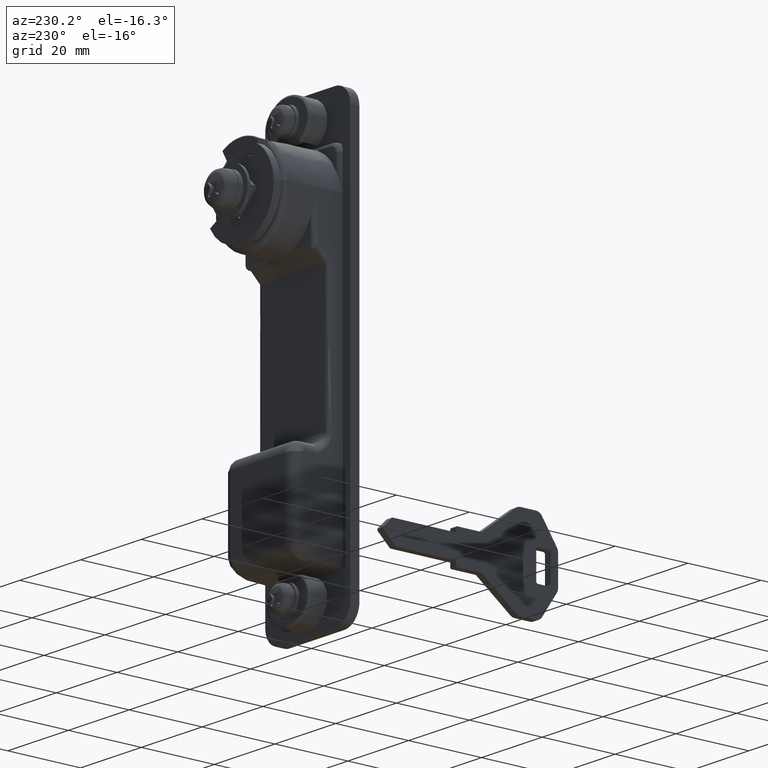
[diagram: clean part render]
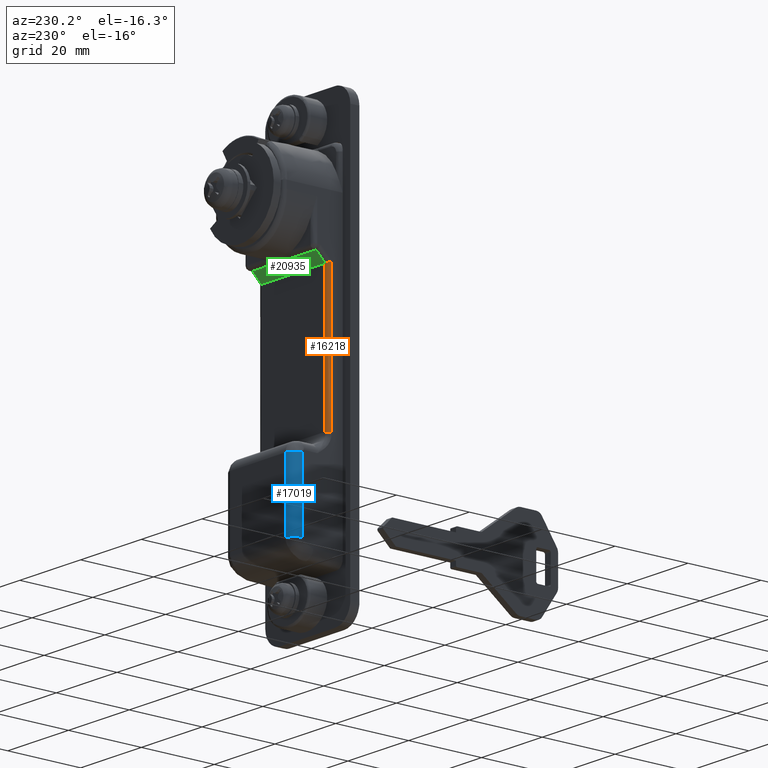
[diagram: same view with three faces highlighted in distinct colors, each labeled with its STEP entity id]
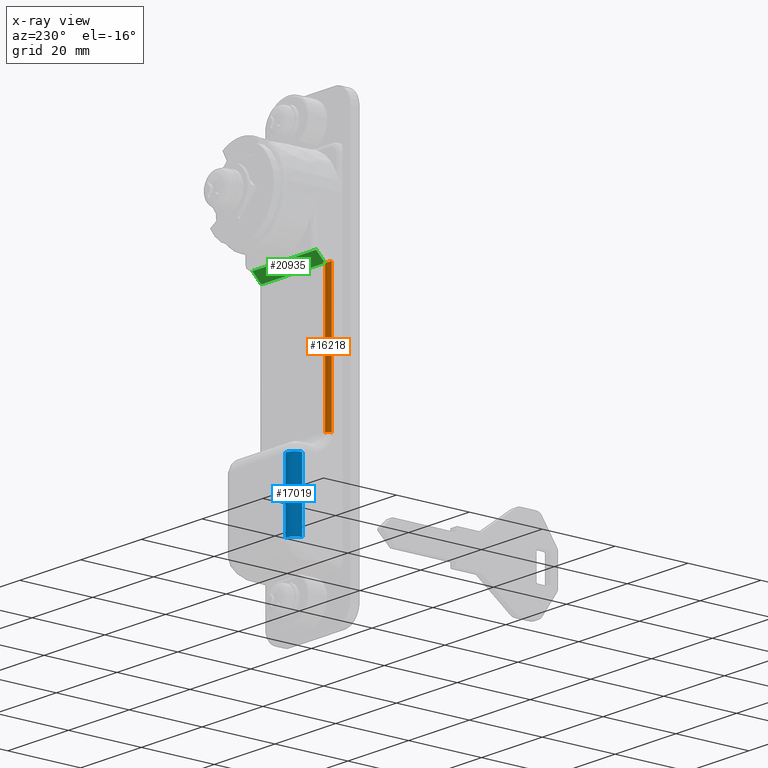
[diagram: x-ray of the same camera — body ghosted, the three highlighted faces saturated]
A machine part, auxiliary view with three faces highlighted in distinct colors.
The next image is the same camera in x-ray (body ghosted, the three faces saturated) — at least one of them is partly hidden behind the body in this view.
Their STEP definitions:

[orange] entity #16218 — the highlighted face is a freeform B-spline surface patch.
#16079=CARTESIAN_POINT('',(4.0,11.500000000000000,-52.208497377870998));
#16080=VERTEX_POINT('',#16079);
#16081=CARTESIAN_POINT('',(5.0,10.500000000000000,-52.208497377870998));
#16082=VERTEX_POINT('',#16081);
#16083=CARTESIAN_POINT('',(4.0,11.500000000000000,-52.208497377870998));
#16084=CARTESIAN_POINT('',(5.000000000000001,11.500000000000000,-52.208497377870991));
#16085=CARTESIAN_POINT('',(5.0,10.500000000000000,-52.208497377870998));
#16093=(BOUNDED_CURVE()B_SPLINE_CURVE(2,(#16083,#16084,#16085),.UNSPECIFIED.,.F.,.U.)CURVE()GEOMETRIC_REPRESENTATION_ITEM()QUASI_UNIFORM_CURVE()RATIONAL_B_SPLINE_CURVE((1.0,0.707106781186548,1.0))REPRESENTATION_ITEM(''));
#16094=EDGE_CURVE('',#16080,#16082,#16093,.T.);
#16172=CARTESIAN_POINT('',(3.991273464501627,11.499961923064170,-53.150303601377097));
#16173=CARTESIAN_POINT('',(3.991273464501627,11.499961923064170,-13.570897058533330));
#16174=CARTESIAN_POINT('',(5.063601342011753,11.509319986679548,-53.150303601377111));
#16175=CARTESIAN_POINT('',(5.063601342011753,11.509319986679548,-13.570897058533326));
#16176=CARTESIAN_POINT('',(4.998134798421866,10.438951460465150,-53.150303601377097));
#16177=CARTESIAN_POINT('',(4.998134798421866,10.438951460465150,-13.570897058533330));
#16185=(BOUNDED_SURFACE()B_SPLINE_SURFACE(1,2,((#16172,#16174,#16176),(#16173,#16175,#16177)),.UNSPECIFIED.,.F.,.F.,.U.)B_SPLINE_SURFACE_WITH_KNOTS((2,2),(3,3),(0.0,39.579406542843778),(0.0,1.0),.UNSPECIFIED.)GEOMETRIC_REPRESENTATION_ITEM()RATIONAL_B_SPLINE_SURFACE(((1.0,0.681998360062499,1.0),(1.0,0.681998360062499,1.0)))REPRESENTATION_ITEM('')SURFACE());
#16186=CARTESIAN_POINT('',(4.0,11.500000000000000,-14.536248437627080));
#16187=VERTEX_POINT('',#16186);
#16188=CARTESIAN_POINT('',(5.0,10.500000000000000,-14.950462000000099));
#16189=VERTEX_POINT('',#16188);
#16190=CARTESIAN_POINT('',(3.999999999999993,11.500000000000000,-14.536248437627100));
#16191=CARTESIAN_POINT('',(4.414213638594921,11.500000000000000,-14.707821344453023));
#16192=CARTESIAN_POINT('',(4.707106873194422,11.207106689178660,-14.829141694551460));
#16193=CARTESIAN_POINT('',(5.000000107793927,10.914213378357324,-14.950462044649898));
#16194=CARTESIAN_POINT('',(5.0,10.500000000000000,-14.950462000000099));
#16202=(BOUNDED_CURVE()B_SPLINE_CURVE(2,(#16190,#16191,#16192,#16193,#16194),.UNSPECIFIED.,.F.,.U.)B_SPLINE_CURVE_WITH_KNOTS((3,2,3),(0.0,0.500000000000000,1.0),.UNSPECIFIED.)CURVE()GEOMETRIC_REPRESENTATION_ITEM()RATIONAL_B_SPLINE_CURVE((1.0,0.923879507614147,1.0,0.923879507614147,1.0))REPRESENTATION_ITEM(''));
#16203=EDGE_CURVE('',#16187,#16189,#16202,.T.);
#16204=ORIENTED_EDGE('',*,*,#16203,.T.);
#16205=CARTESIAN_POINT('',(5.0,10.500000000000000,-52.208497377870998));
#16206=CARTESIAN_POINT('',(5.0,10.500000000000000,-14.950462000000099));
#16207=QUASI_UNIFORM_CURVE('',1,(#16205,#16206),.UNSPECIFIED.,.F.,.U.);
#16208=EDGE_CURVE('',#16082,#16189,#16207,.T.);
#16209=ORIENTED_EDGE('',*,*,#16208,.F.);
#16210=ORIENTED_EDGE('',*,*,#16094,.F.);
#16211=CARTESIAN_POINT('',(4.0,11.500000000000000,-14.536248437627080));
#16212=CARTESIAN_POINT('',(4.0,11.500000000000000,-52.208497377870998));
#16213=QUASI_UNIFORM_CURVE('',1,(#16211,#16212),.UNSPECIFIED.,.F.,.U.);
#16214=EDGE_CURVE('',#16187,#16080,#16213,.T.);
#16215=ORIENTED_EDGE('',*,*,#16214,.F.);
#16216=EDGE_LOOP('',(#16204,#16209,#16210,#16215));
#16217=FACE_OUTER_BOUND('',#16216,.T.);
#16218=ADVANCED_FACE('',(#16217),#16185,.T.);

[blue] entity #17019 — the highlighted face is a freeform B-spline surface patch.
#16912=CARTESIAN_POINT('',(14.600000000000000,9.0,-58.0));
#16913=VERTEX_POINT('',#16912);
#16914=CARTESIAN_POINT('',(12.100000000000000,11.500000000000000,-58.0));
#16915=VERTEX_POINT('',#16914);
#16916=CARTESIAN_POINT('',(14.600000000000000,9.0,-58.0));
#16917=CARTESIAN_POINT('',(14.600000000000009,11.500000000000000,-58.0));
#16918=CARTESIAN_POINT('',(12.100000000000000,11.500000000000000,-58.0));
#16926=(BOUNDED_CURVE()B_SPLINE_CURVE(2,(#16916,#16917,#16918),.UNSPECIFIED.,.F.,.U.)CURVE()GEOMETRIC_REPRESENTATION_ITEM()QUASI_UNIFORM_CURVE()RATIONAL_B_SPLINE_CURVE((1.0,0.707106781186548,1.0))REPRESENTATION_ITEM(''));
#16927=EDGE_CURVE('',#16913,#16915,#16926,.T.);
#16975=CARTESIAN_POINT('',(12.034557629230310,11.499143312438891,-77.226013150000114));
#16976=CARTESIAN_POINT('',(12.034557629230310,11.499143312438891,-57.519349671249991));
#16977=CARTESIAN_POINT('',(14.761893971485295,11.570561127989979,-77.226013150000099));
#16978=CARTESIAN_POINT('',(14.761893971485295,11.570561127989979,-57.519349671249991));
#16979=CARTESIAN_POINT('',(14.595336996054669,8.847378651162860,-77.226013150000114));
#16980=CARTESIAN_POINT('',(14.595336996054669,8.847378651162860,-57.519349671249991));
#16988=(BOUNDED_SURFACE()B_SPLINE_SURFACE(1,2,((#16975,#16977,#16979),(#16976,#16978,#16980)),.UNSPECIFIED.,.F.,.F.,.U.)B_SPLINE_SURFACE_WITH_KNOTS((2,2),(3,3),(0.0,19.706663478750130),(0.0,4.400105308918334),.UNSPECIFIED.)GEOMETRIC_REPRESENTATION_ITEM()RATIONAL_B_SPLINE_SURFACE(((1.0,0.675590207615660,1.0),(1.0,0.675590207615660,1.0)))REPRESENTATION_ITEM('')SURFACE());
#16989=CARTESIAN_POINT('',(14.600000000000000,9.0,-76.757086000000101));
#16990=VERTEX_POINT('',#16989);
#16991=CARTESIAN_POINT('',(12.100000000000000,11.500000000000000,-76.757086000000101));
#16992=VERTEX_POINT('',#16991);
#16993=CARTESIAN_POINT('',(14.600000000000000,9.0,-76.757086000000101));
#16994=CARTESIAN_POINT('',(14.600000000000009,11.500000000000000,-76.757086000000101));
#16995=CARTESIAN_POINT('',(12.100000000000000,11.500000000000000,-76.757086000000101));
#17003=(BOUNDED_CURVE()B_SPLINE_CURVE(2,(#16993,#16994,#16995),.UNSPECIFIED.,.F.,.U.)CURVE()GEOMETRIC_REPRESENTATION_ITEM()QUASI_UNIFORM_CURVE()RATIONAL_B_SPLINE_CURVE((1.0,0.707106781186548,1.0))REPRESENTATION_ITEM(''));
#17004=EDGE_CURVE('',#16990,#16992,#17003,.T.);
#17005=ORIENTED_EDGE('',*,*,#17004,.T.);
#17006=CARTESIAN_POINT('',(12.100000000000000,11.500000000000000,-58.0));
#17007=CARTESIAN_POINT('',(12.100000000000000,11.500000000000000,-76.757086000000101));
#17008=QUASI_UNIFORM_CURVE('',1,(#17006,#17007),.UNSPECIFIED.,.F.,.U.);
#17009=EDGE_CURVE('',#16915,#16992,#17008,.T.);
#17010=ORIENTED_EDGE('',*,*,#17009,.F.);
#17011=ORIENTED_EDGE('',*,*,#16927,.F.);
#17012=CARTESIAN_POINT('',(14.600000000000000,9.0,-76.757086000000101));
#17013=CARTESIAN_POINT('',(14.600000000000000,9.0,-58.0));
#17014=QUASI_UNIFORM_CURVE('',1,(#17012,#17013),.UNSPECIFIED.,.F.,.U.);
#17015=EDGE_CURVE('',#16990,#16913,#17014,.T.);
#17016=ORIENTED_EDGE('',*,*,#17015,.F.);
#17017=EDGE_LOOP('',(#17005,#17010,#17011,#17016));
#17018=FACE_OUTER_BOUND('',#17017,.T.);
#17019=ADVANCED_FACE('',(#17018),#16988,.T.);

[green] entity #20935 — the highlighted face is a freeform B-spline surface patch.
#15748=CARTESIAN_POINT('',(5.0,-10.500000000000000,-14.950462000000099));
#15749=VERTEX_POINT('',#15748);
#15793=CARTESIAN_POINT('',(7.450462000000099,-10.500000000000000,-12.500000000000000));
#15794=VERTEX_POINT('',#15793);
#15816=CARTESIAN_POINT('',(7.450462000000099,-10.500000000000000,-12.500000000000000));
#15817=CARTESIAN_POINT('',(5.0,-10.500000000000000,-14.950462000000099));
#15818=QUASI_UNIFORM_CURVE('',1,(#15816,#15817),.UNSPECIFIED.,.F.,.U.);
#15819=EDGE_CURVE('',#15794,#15749,#15818,.T.);
#16188=CARTESIAN_POINT('',(5.0,10.500000000000000,-14.950462000000099));
#16189=VERTEX_POINT('',#16188);
#16235=CARTESIAN_POINT('',(7.450462000000099,10.500000000000000,-12.500000000000000));
#16236=VERTEX_POINT('',#16235);
#16252=CARTESIAN_POINT('',(5.0,10.500000000000000,-14.950462000000099));
#16253=CARTESIAN_POINT('',(7.450462000000099,10.500000000000000,-12.500000000000000));
#16254=QUASI_UNIFORM_CURVE('',1,(#16252,#16253),.UNSPECIFIED.,.F.,.U.);
#16255=EDGE_CURVE('',#16189,#16236,#16254,.T.);
#20762=CARTESIAN_POINT('',(7.450462000000099,-10.500000000000000,-12.500000000000000));
#20763=CARTESIAN_POINT('',(7.450462000000099,10.500000000000000,-12.500000000000000));
#20764=QUASI_UNIFORM_CURVE('',1,(#20762,#20763),.UNSPECIFIED.,.F.,.U.);
#20765=EDGE_CURVE('',#15794,#16236,#20764,.T.);
#20781=CARTESIAN_POINT('',(5.0,-10.500000000000000,-14.950462000000099));
#20782=CARTESIAN_POINT('',(5.0,10.500000000000000,-14.950462000000099));
#20783=QUASI_UNIFORM_CURVE('',1,(#20781,#20782),.UNSPECIFIED.,.F.,.U.);
#20784=EDGE_CURVE('',#15749,#16189,#20783,.T.);
#20924=CARTESIAN_POINT('',(7.572862511895854,-11.548949959297930,-12.377599488104250));
#20925=CARTESIAN_POINT('',(4.877599181380520,-11.548949959297930,-15.072862818619580));
#20926=CARTESIAN_POINT('',(7.572862511895854,11.548950522561819,-12.377599488104250));
#20927=CARTESIAN_POINT('',(4.877599181380520,11.548950522561819,-15.072862818619580));
#20928=B_SPLINE_SURFACE_WITH_KNOTS('',1,1,((#20924,#20926),(#20925,#20927)),.UNSPECIFIED.,.F.,.F.,.U.,(2,2),(2,2),(0.0,3.811677956181663),(0.0,23.097900481859750),.UNSPECIFIED.);
#20929=ORIENTED_EDGE('',*,*,#20784,.T.);
#20930=ORIENTED_EDGE('',*,*,#16255,.T.);
#20931=ORIENTED_EDGE('',*,*,#20765,.F.);
#20932=ORIENTED_EDGE('',*,*,#15819,.T.);
#20933=EDGE_LOOP('',(#20929,#20930,#20931,#20932));
#20934=FACE_OUTER_BOUND('',#20933,.T.);
#20935=ADVANCED_FACE('',(#20934),#20928,.T.);